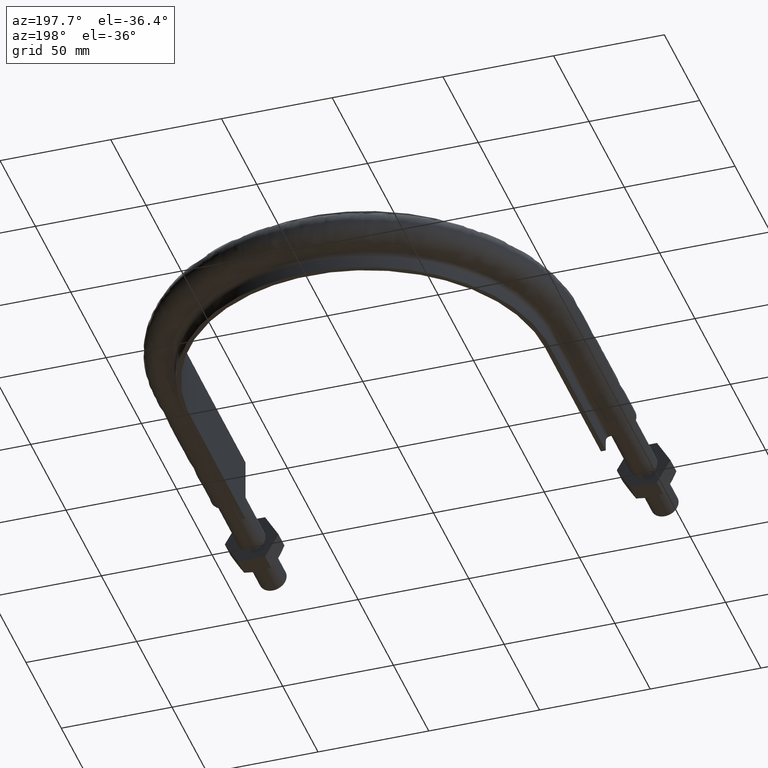
[diagram: clean part render]
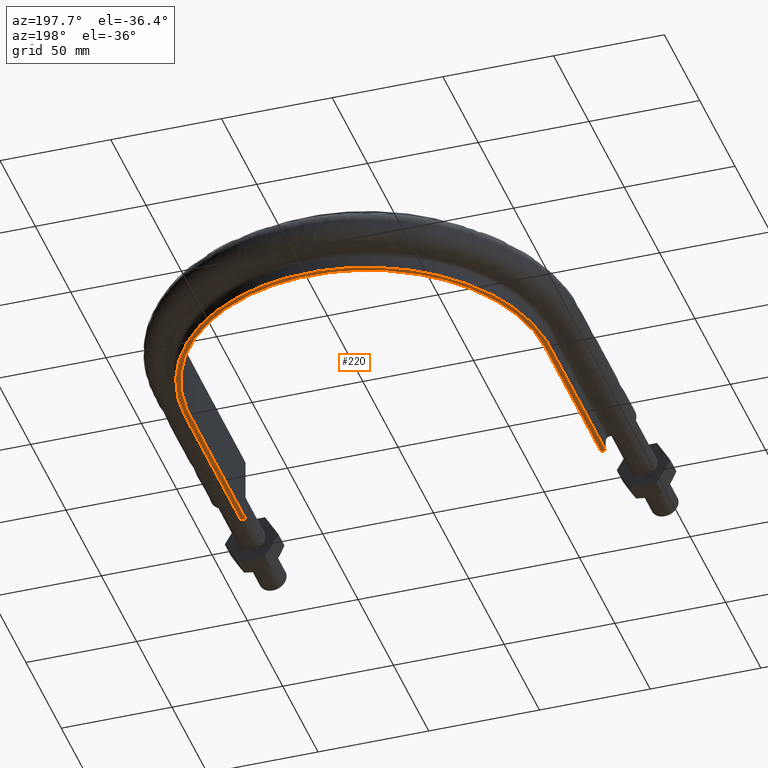
[diagram: same view with one face highlighted and labeled with its STEP entity id]
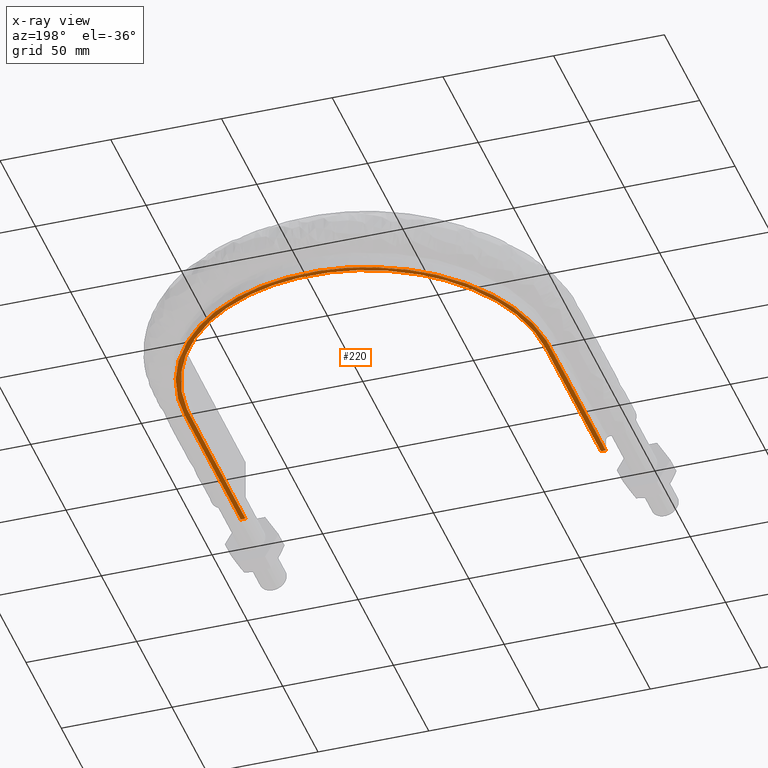
[diagram: x-ray of the same camera — body ghosted, the highlighted face saturated]
A machine part, auxiliary view. The second image highlights one B-rep face of the part: STEP entity #220.
The next image is the same camera in x-ray: the body ghosted, the highlighted face saturated — about 0% of this face is hidden behind the body in this view.
In plain terms, the highlighted planar face has unit normal (0, 0, 1).
Its self-contained STEP definition (entity closure, byte-faithful):
#220 = ADVANCED_FACE( '', ( #261 ), #262, .F. );
#261 = FACE_OUTER_BOUND( '', #357, .T. );
#262 = PLANE( '', #358 );
#357 = EDGE_LOOP( '', ( #1366, #1367, #1368, #1369 ) );
#358 = AXIS2_PLACEMENT_3D( '', #1370, #1371, #1372 );
#1366 = ORIENTED_EDGE( '', *, *, #1616, .F. );
#1367 = ORIENTED_EDGE( '', *, *, #1615, .F. );
#1368 = ORIENTED_EDGE( '', *, *, #1617, .F. );
#1369 = ORIENTED_EDGE( '', *, *, #1618, .F. );
#1370 = CARTESIAN_POINT( '', ( 150.000000000000, 364.500000000000, -15.0000000000000 ) );
#1371 = DIRECTION( '', ( 0.000000000000000, 0.000000000000000, 1.00000000000000 ) );
#1372 = DIRECTION( '', ( 1.22460635382238E-016, 1.00000000000000, 0.000000000000000 ) );
#1615 = EDGE_CURVE( '', #1684, #1679, #1686, .T. );
#1616 = EDGE_CURVE( '', #1679, #1687, #1688, .T. );
#1617 = EDGE_CURVE( '', #1689, #1684, #1690, .T. );
#1618 = EDGE_CURVE( '', #1687, #1689, #1691, .T. );
#1679 = VERTEX_POINT( '', #1805 );
#1684 = VERTEX_POINT( '', #1812 );
#1686 = LINE( '', #1844, #1845 );
#1687 = VERTEX_POINT( '', #1846 );
#1688 = B_SPLINE_CURVE_WITH_KNOTS( '', 3, ( #1847, #1848, #1849, #1850, #1851, #1852, #1853, #1854, #1855, #1856, #1857, #1858, #1859, #1860, #1861, #1862, #1863, #1864 ), .UNSPECIFIED., .F., .F., ( 4, 3, 1, 1, 1, 1, 1, 1, 1, 1, 3, 4 ), ( -9.00000000000000, -8.00000000000000, -7.50000000000000, -7.00000000000000, -6.00000000000000, -5.00000000000000, -4.00000000000000, -3.00000000000000, -2.00000000000000, -1.50000000000000, -1.00000000000000, 0.000000000000000 ), .UNSPECIFIED. );
#1689 = VERTEX_POINT( '', #1865 );
#1690 = B_SPLINE_CURVE_WITH_KNOTS( '', 3, ( #1866, #1867, #1868, #1869, #1870, #1871, #1872, #1873, #1874, #1875, #1876, #1877, #1878, #1879, #1880, #1881, #1882, #1883 ), .UNSPECIFIED., .F., .F., ( 4, 3, 1, 1, 1, 1, 1, 1, 1, 1, 3, 4 ), ( 0.000000000000000, 1.00000000000000, 1.50000000000000, 2.00000000000000, 3.00000000000000, 4.00000000000000, 5.00000000000000, 6.00000000000000, 7.00000000000000, 7.50000000000000, 8.00000000000000, 9.00000000000000 ), .UNSPECIFIED. );
#1691 = LINE( '', #1884, #1885 );
#1805 = CARTESIAN_POINT( '', ( -80.2499999999999, 64.5000000000003, -15.0000000000000 ) );
#1812 = CARTESIAN_POINT( '', ( -82.4499999999999, 64.5000000000003, -15.0000000000000 ) );
#1844 = CARTESIAN_POINT( '', ( -150.000000000000, 64.5000000000003, -15.0000000000000 ) );
#1845 = VECTOR( '', #2241, 1000.00000000000 );
#1846 = CARTESIAN_POINT( '', ( 80.2499999999999, 64.5000000000000, -15.0000000000002 ) );
#1847 = CARTESIAN_POINT( '', ( -80.2500000000000, 64.5000000000001, -15.0000000000001 ) );
#1848 = CARTESIAN_POINT( '', ( -80.2500000000000, 90.9200000000001, -15.0000000000001 ) );
#1849 = CARTESIAN_POINT( '', ( -80.2500000000000, 117.340000000000, -15.0000000000001 ) );
#1850 = CARTESIAN_POINT( '', ( -80.2500000000000, 143.760000000000, -15.0000000000001 ) );
#1851 = CARTESIAN_POINT( '', ( -80.2500000000000, 149.750586735035, -15.0000000000001 ) );
#1852 = CARTESIAN_POINT( '', ( -78.8786264043398, 161.768376163953, -15.0000000000001 ) );
#1853 = CARTESIAN_POINT( '', ( -70.9339277239971, 184.577888193896, -15.0000000000001 ) );
#1854 = CARTESIAN_POINT( '', ( -51.7427931998640, 208.644676397937, -15.0000000000001 ) );
#1855 = CARTESIAN_POINT( '', ( -18.4670121667006, 224.668622663522, -15.0000000000001 ) );
#1856 = CARTESIAN_POINT( '', ( 18.4670121667005, 224.668622663522, -15.0000000000001 ) );
#1857 = CARTESIAN_POINT( '', ( 51.7427931998639, 208.644676397937, -15.0000000000001 ) );
#1858 = CARTESIAN_POINT( '', ( 70.9339277239970, 184.577888193896, -15.0000000000001 ) );
#1859 = CARTESIAN_POINT( '', ( 78.8786264043398, 161.768376163953, -15.0000000000001 ) );
#1860 = CARTESIAN_POINT( '', ( 80.2500000000000, 149.750586735035, -15.0000000000001 ) );
#1861 = CARTESIAN_POINT( '', ( 80.2499999999999, 143.760000000000, -15.0000000000001 ) );
#1862 = CARTESIAN_POINT( '', ( 80.2499999999999, 117.340000000000, -15.0000000000001 ) );
#1863 = CARTESIAN_POINT( '', ( 80.2499999999999, 90.9200000000000, -15.0000000000001 ) );
#1864 = CARTESIAN_POINT( '', ( 80.2499999999999, 64.5000000000000, -15.0000000000001 ) );
#1865 = CARTESIAN_POINT( '', ( 82.4500000000002, 64.5000000000003, -15.0000000000000 ) );
#1866 = CARTESIAN_POINT( '', ( 82.4500000000000, 64.5000000000000, -15.0000000000000 ) );
#1867 = CARTESIAN_POINT( '', ( 82.4500000000000, 90.9200000000000, -15.0000000000000 ) );
#1868 = CARTESIAN_POINT( '', ( 82.4500000000000, 117.340000000000, -15.0000000000000 ) );
#1869 = CARTESIAN_POINT( '', ( 82.4500000000000, 143.760000000000, -15.0000000000000 ) );
#1870 = CARTESIAN_POINT( '', ( 82.4500000000000, 149.917965282921, -15.0000000000000 ) );
#1871 = CARTESIAN_POINT( '', ( 81.0415063471974, 162.260747551918, -15.0000000000000 ) );
#1872 = CARTESIAN_POINT( '', ( 72.8782592641098, 185.697642595926, -15.0000000000000 ) );
#1873 = CARTESIAN_POINT( '', ( 53.1613822653425, 210.423193230709, -15.0000000000000 ) );
#1874 = CARTESIAN_POINT( '', ( 18.9732412542822, 226.886728985128, -15.0000000000000 ) );
#1875 = CARTESIAN_POINT( '', ( -18.9732412542821, 226.886728985128, -15.0000000000000 ) );
#1876 = CARTESIAN_POINT( '', ( -53.1613822653425, 210.423193230709, -15.0000000000000 ) );
#1877 = CARTESIAN_POINT( '', ( -72.8782592641097, 185.697642595927, -15.0000000000000 ) );
#1878 = CARTESIAN_POINT( '', ( -81.0415063471973, 162.260747551918, -15.0000000000000 ) );
#1879 = CARTESIAN_POINT( '', ( -82.4500000000000, 149.917965282921, -15.0000000000000 ) );
#1880 = CARTESIAN_POINT( '', ( -82.4500000000000, 143.760000000000, -15.0000000000000 ) );
#1881 = CARTESIAN_POINT( '', ( -82.4500000000000, 117.340000000000, -15.0000000000000 ) );
#1882 = CARTESIAN_POINT( '', ( -82.4500000000000, 90.9200000000000, -15.0000000000000 ) );
#1883 = CARTESIAN_POINT( '', ( -82.4500000000000, 64.5000000000001, -15.0000000000000 ) );
#1884 = CARTESIAN_POINT( '', ( -150.000000000000, 64.5000000000003, -15.0000000000000 ) );
#1885 = VECTOR( '', #2242, 1000.00000000000 );
#2241 = DIRECTION( '', ( 1.00000000000000, -1.22460635382238E-016, 0.000000000000000 ) );
#2242 = DIRECTION( '', ( 1.00000000000000, -1.22460635382238E-016, 0.000000000000000 ) );